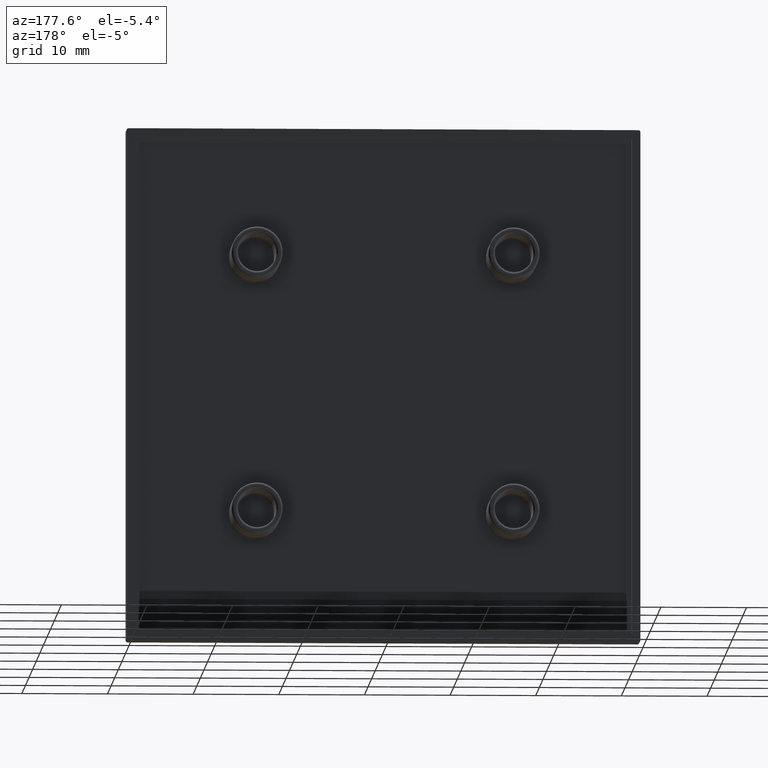
[diagram: clean part render]
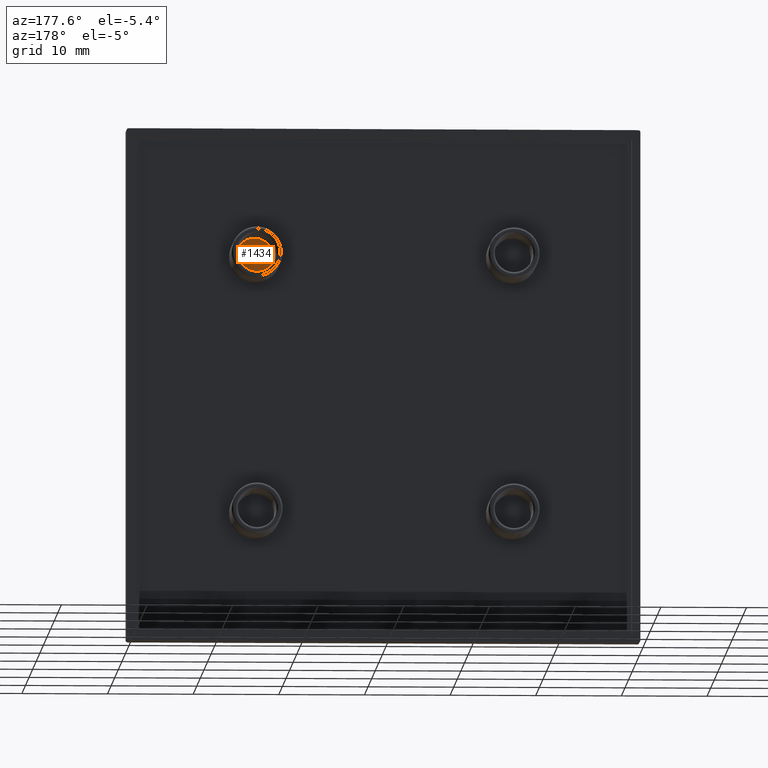
[diagram: same view with one face highlighted and labeled with its STEP entity id]
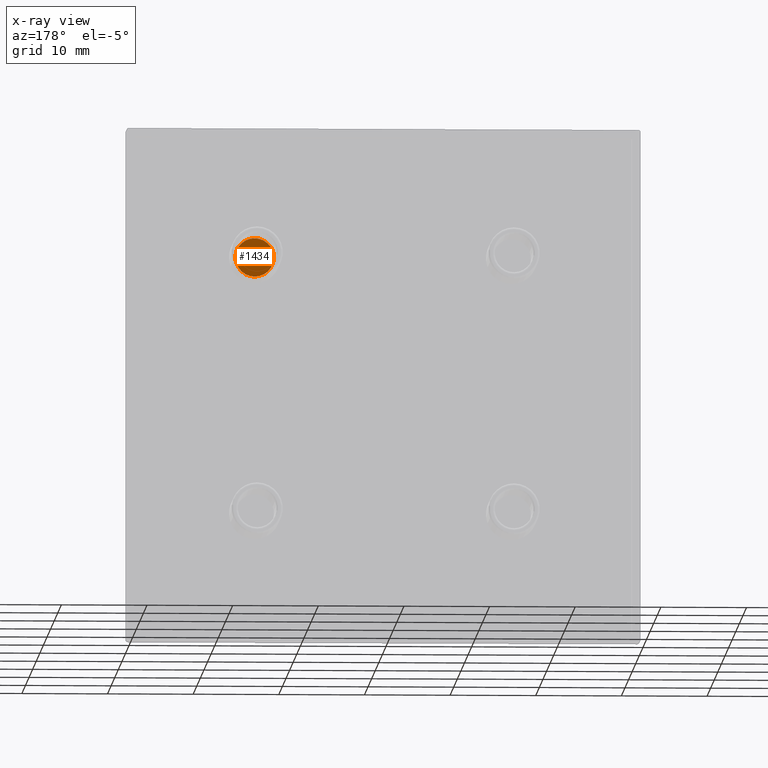
[diagram: x-ray of the same camera — body ghosted, the highlighted face saturated]
A machine part, auxiliary view. The second image highlights one B-rep face of the part: STEP entity #1434.
The next image is the same camera in x-ray: the body ghosted, the highlighted face saturated — about 0% of this face is hidden behind the body in this view.
In plain terms, the highlighted planar face has unit normal (0, 1, 0).
Its self-contained STEP definition (entity closure, byte-faithful):
#23 = EDGE_CURVE ( 'NONE', #624, #818, #1348, .T. ) ;
#137 = PLANE ( 'NONE',  #419 ) ;
#138 = CARTESIAN_POINT ( 'NONE',  ( 42.72300000000000600, 2.000000000000000000, -17.27700000000000100 ) ) ;
#139 = DIRECTION ( 'NONE',  ( 0.0000000000000000000, 1.000000000000000000, 0.0000000000000000000 ) ) ;
#140 = DIRECTION ( 'NONE',  ( 0.0000000000000000000, 0.0000000000000000000, 1.000000000000000000 ) ) ;
#318 = AXIS2_PLACEMENT_3D ( 'NONE', #863, #864, #865 ) ;
#385 = AXIS2_PLACEMENT_3D ( 'NONE', #735, #736, #737 ) ;
#419 = AXIS2_PLACEMENT_3D ( 'NONE', #138, #139, #140 ) ;
#475 = CIRCLE ( 'NONE', #385, 2.250000000000001800 ) ;
#624 = VERTEX_POINT ( 'NONE', #1585 ) ;
#735 = CARTESIAN_POINT ( 'NONE',  ( 45.00000000000000000, 2.000000000000000000, -15.00000000000000000 ) ) ;
#736 = DIRECTION ( 'NONE',  ( 0.0000000000000000000, -1.000000000000000000, 0.0000000000000000000 ) ) ;
#737 = DIRECTION ( 'NONE',  ( 0.0000000000000000000, 0.0000000000000000000, -1.000000000000000000 ) ) ;
#818 = VERTEX_POINT ( 'NONE', #1598 ) ;
#863 = CARTESIAN_POINT ( 'NONE',  ( 45.00000000000000000, 2.000000000000000000, -15.00000000000000000 ) ) ;
#864 = DIRECTION ( 'NONE',  ( 0.0000000000000000000, -1.000000000000000000, 0.0000000000000000000 ) ) ;
#865 = DIRECTION ( 'NONE',  ( 0.0000000000000000000, 0.0000000000000000000, -1.000000000000000000 ) ) ;
#1037 = EDGE_CURVE ( 'NONE', #818, #624, #475, .T. ) ;
#1196 = EDGE_LOOP ( 'NONE', ( #1451, #1442 ) ) ;
#1348 = CIRCLE ( 'NONE', #318, 2.250000000000001800 ) ;
#1434 = ADVANCED_FACE ( 'NONE', ( #1703 ), #137, .T. ) ;
#1442 = ORIENTED_EDGE ( 'NONE', *, *, #1037, .F. ) ;
#1451 = ORIENTED_EDGE ( 'NONE', *, *, #23, .F. ) ;
#1585 = CARTESIAN_POINT ( 'NONE',  ( 45.00000000000000000, 2.000000000000000000, -17.25000000000000000 ) ) ;
#1598 = CARTESIAN_POINT ( 'NONE',  ( 45.00000000000000000, 2.000000000000000000, -12.74999999999999800 ) ) ;
#1703 = FACE_OUTER_BOUND ( 'NONE', #1196, .T. ) ;